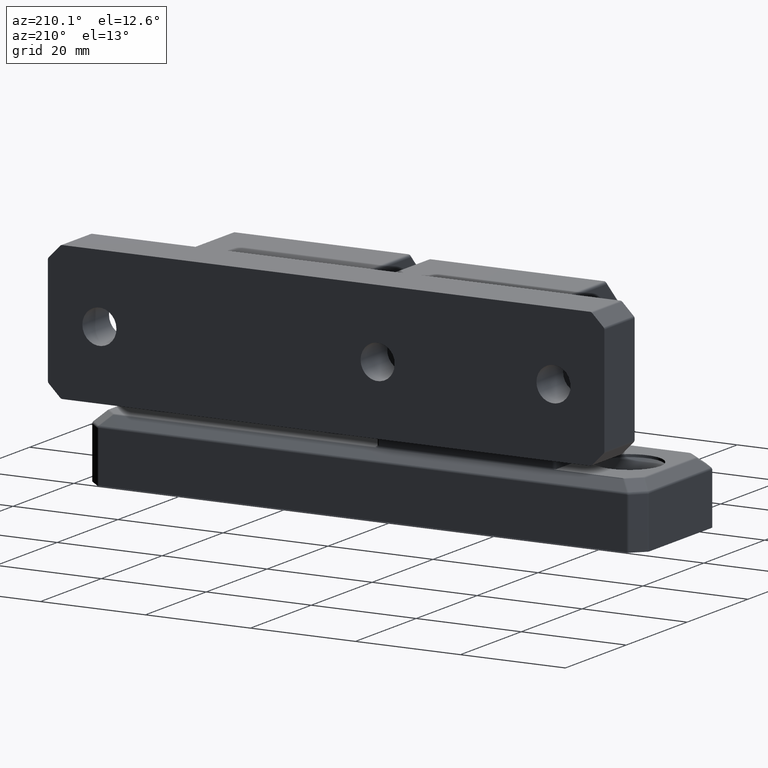
[diagram: clean part render]
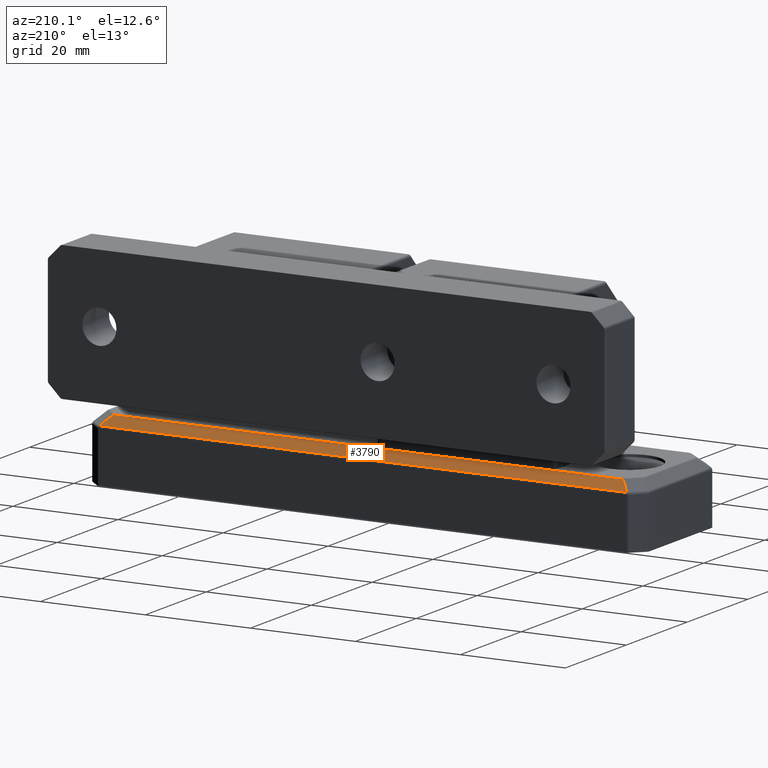
[diagram: same view with one face highlighted and labeled with its STEP entity id]
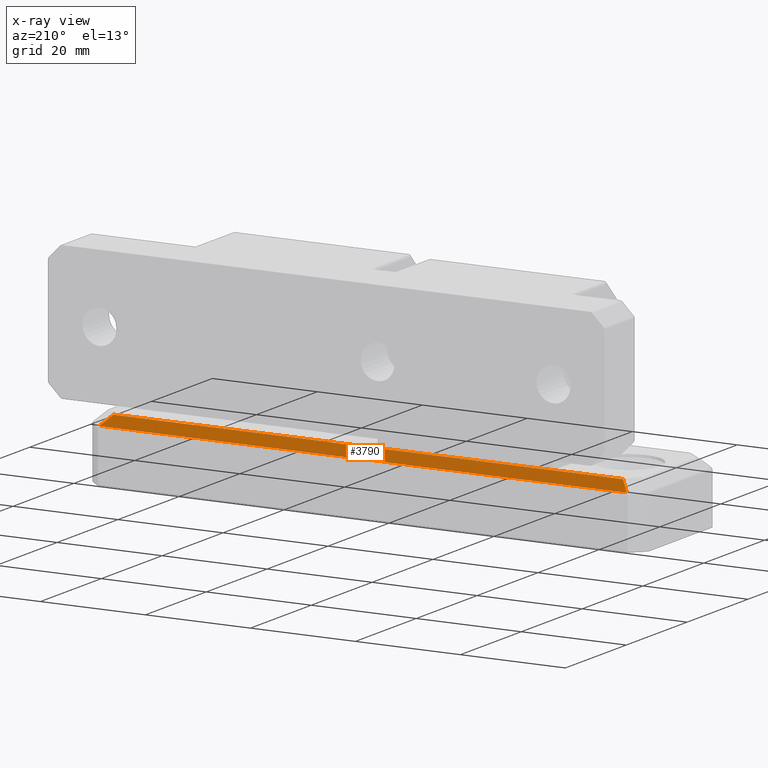
[diagram: x-ray of the same camera — body ghosted, the highlighted face saturated]
A machine part, auxiliary view. The second image highlights one B-rep face of the part: STEP entity #3790.
The next image is the same camera in x-ray: the body ghosted, the highlighted face saturated — about 0% of this face is hidden behind the body in this view.
In plain terms, the highlighted planar face has unit normal (0, 0.7071, 0.7071).
Its self-contained STEP definition (entity closure, byte-faithful):
#109=PLANE('',#4187);
#194=LINE('',#5926,#444);
#226=LINE('',#6064,#476);
#255=LINE('',#6197,#505);
#298=LINE('',#6432,#548);
#299=LINE('',#6482,#549);
#444=VECTOR('',#4598,100.479957896397);
#476=VECTOR('',#4756,2.95679567896046);
#505=VECTOR('',#4843,2.95679567896046);
#548=VECTOR('',#5060,46.5328721670118);
#549=VECTOR('',#5071,50.5328721670118);
#929=FACE_OUTER_BOUND('',#1206,.T.);
#1206=EDGE_LOOP('',(#2987,#2988,#2989,#2990,#2991));
#1691=VERTEX_POINT('',#5879);
#1699=VERTEX_POINT('',#5904);
#1748=VERTEX_POINT('',#6062);
#1767=VERTEX_POINT('',#6194);
#1810=VERTEX_POINT('',#6430);
#2022=EDGE_CURVE('',#1699,#1691,#194,.T.);
#2091=EDGE_CURVE('',#1748,#1699,#226,.T.);
#2137=EDGE_CURVE('',#1691,#1767,#255,.T.);
#2224=EDGE_CURVE('',#1810,#1748,#298,.T.);
#2230=EDGE_CURVE('',#1767,#1810,#299,.T.);
#2987=ORIENTED_EDGE('',*,*,#2091,.F.);
#2988=ORIENTED_EDGE('',*,*,#2224,.F.);
#2989=ORIENTED_EDGE('',*,*,#2230,.F.);
#2990=ORIENTED_EDGE('',*,*,#2137,.F.);
#2991=ORIENTED_EDGE('',*,*,#2022,.F.);
#3790=ADVANCED_FACE('',(#929),#109,.T.);
#4187=AXIS2_PLACEMENT_3D('',#6493,#5086,#5087);
#4598=DIRECTION('',(1.,1.25685625429263E-16,0.));
#4756=DIRECTION('',(-0.577350269189626,0.577350269189626,-0.577350269189625));
#4843=DIRECTION('',(-0.577350269189626,-0.577350269189626,0.577350269189625));
#5060=DIRECTION('',(-1.,-3.41607084500048E-16,2.15921459070785E-16));
#5071=DIRECTION('',(-1.,-1.25685625429263E-16,0.));
#5086=DIRECTION('center_axis',(-8.88731580387042E-17,0.707106781186547,
0.707106781186548));
#5087=DIRECTION('ref_axis',(1.,0.,1.77635683940025E-16));
#5879=CARTESIAN_POINT('',(50.2399789481983,12.8535533905933,10.1464466094067));
#5904=CARTESIAN_POINT('',(-50.2399789481983,12.8535533905933,10.1464466094067));
#5926=CARTESIAN_POINT('',(39.75,12.8535533905933,10.1464466094067));
#6062=CARTESIAN_POINT('',(-48.5328721670118,11.1464466094067,11.8535533905933));
#6064=CARTESIAN_POINT('',(-30.17428370507,-7.21214185253504,30.212141852535));
#6194=CARTESIAN_POINT('',(48.5328721670118,11.1464466094067,11.8535533905933));
#6197=CARTESIAN_POINT('',(42.3409503717367,4.95452481413165,18.0454751858683));
#6430=CARTESIAN_POINT('',(-1.99999999999999,11.1464466094067,11.8535533905933));
#6432=CARTESIAN_POINT('',(-4.49999999999999,11.1464466094067,11.8535533905933));
#6482=CARTESIAN_POINT('',(13.25,11.1464466094067,11.8535533905933));
#6493=CARTESIAN_POINT('Origin',(26.5,12.,11.));